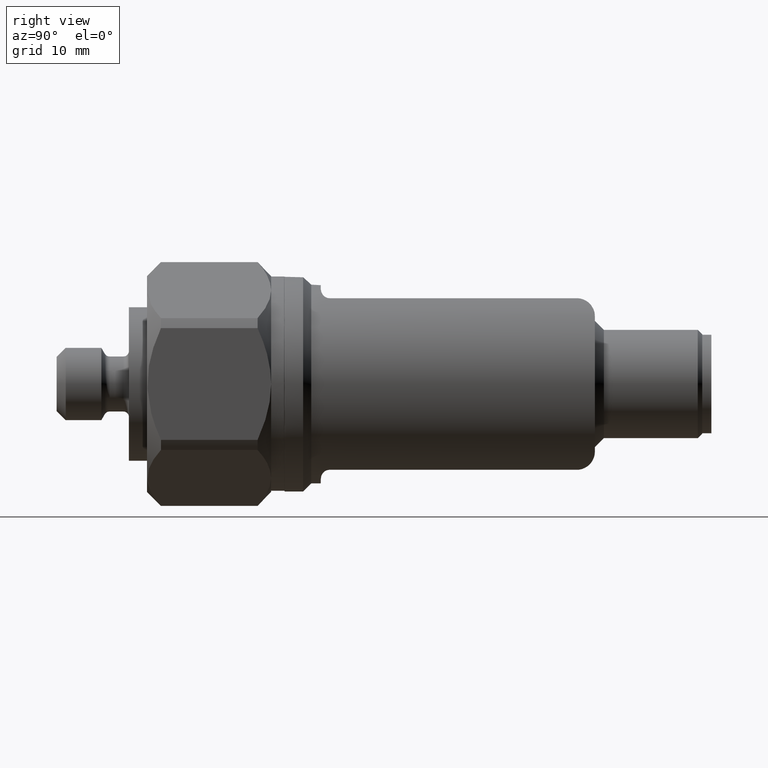
[diagram: clean part render]
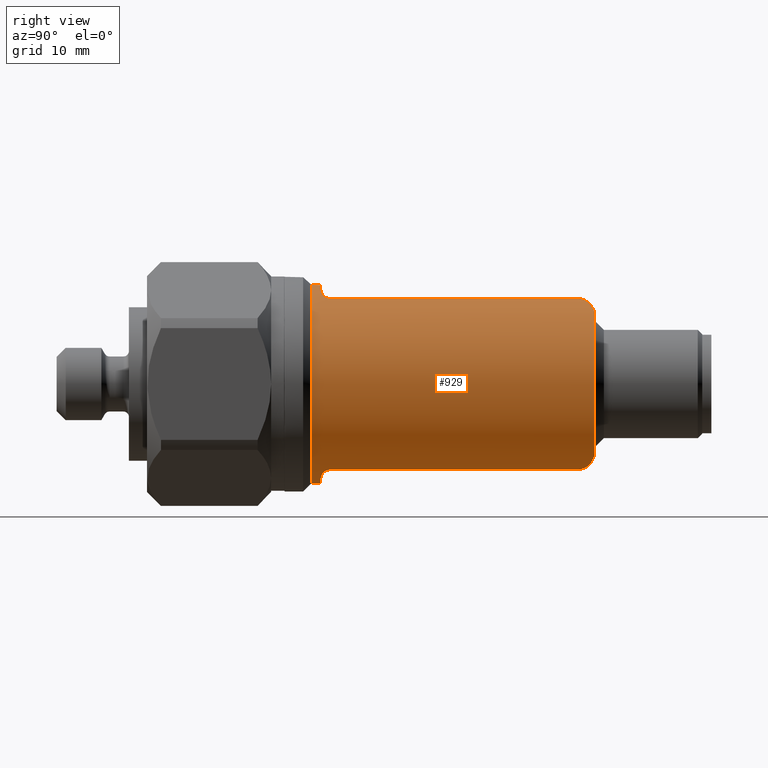
[diagram: same view with one face highlighted and labeled with its STEP entity id]
A machine part, right view. The second image highlights one B-rep face of the part: STEP entity #929.
In plain terms, the highlighted cylindrical surface (bore or boss wall) has radius 11 mm, axis along (0, -1, 0).
Its self-contained STEP definition (entity closure, byte-faithful):
#35 = CARTESIAN_POINT ( 'NONE',  ( -6.302487833183358923, 34.55688866101771595, 9.015783498059160905 ) ) ;
#66 = CARTESIAN_POINT ( 'NONE',  ( 5.475826874967431479, 5.618596032352091818, 9.540200991412580933 ) ) ;
#76 = CIRCLE ( 'NONE', #4707, 11.00000000000000000 ) ;
#98 = CARTESIAN_POINT ( 'NONE',  ( -5.314432909240796477, 5.402511657828561908, 9.631129694525723650 ) ) ;
#143 = CARTESIAN_POINT ( 'NONE',  ( 5.247260732643459491, 5.345448994863527759, 9.667797009793027030 ) ) ;
#155 = CARTESIAN_POINT ( 'NONE',  ( 6.802377522084873007, 34.89144532325906312, -8.644256496299512094 ) ) ;
#157 = CARTESIAN_POINT ( 'NONE',  ( -6.523632049984361636, 34.71951173909048549, 8.856784890457376491 ) ) ;
#187 = CARTESIAN_POINT ( 'NONE',  ( 5.146008744894731812, 5.267375710126724897, 9.722467436799666629 ) ) ;
#264 = ORIENTED_EDGE ( 'NONE', *, *, #6102, .T. ) ;
#272 = CARTESIAN_POINT ( 'NONE',  ( -7.204549710910217009, 35.07816532288709510, -8.312052854465482810 ) ) ;
#320 = CARTESIAN_POINT ( 'NONE',  ( 6.408133087577870590, 34.64321339749720607, -8.942528681736321872 ) ) ;
#345 = ORIENTED_EDGE ( 'NONE', *, *, #5991, .F. ) ;
#353 = CARTESIAN_POINT ( 'NONE',  ( -6.867150983991384905, 34.92505696032355189, -8.593028443529043159 ) ) ;
#389 = CARTESIAN_POINT ( 'NONE',  ( -6.996180947914218073, 34.98957115546404850, -8.488731667773457445 ) ) ;
#401 = CARTESIAN_POINT ( 'NONE',  ( 6.618616979772252940, 34.78183170977057159, 8.786027683273815114 ) ) ;
#407 = DIRECTION ( 'NONE',  ( 0.000000000000000000, 1.000000000000000000, 0.000000000000000000 ) ) ;
#413 = CARTESIAN_POINT ( 'NONE',  ( 4.754854618373030029, 5.085475100241541035, -9.919225570938895231 ) ) ;
#426 = CARTESIAN_POINT ( 'NONE',  ( -5.873326454570344524, 34.12023699102966390, -9.300752799879658639 ) ) ;
#453 = CARTESIAN_POINT ( 'NONE',  ( 3.278719262151019720, 4.899999999999997691, -10.50000000000000000 ) ) ;
#490 = ORIENTED_EDGE ( 'NONE', *, *, #4639, .T. ) ;
#555 = CARTESIAN_POINT ( 'NONE',  ( -4.605751629859228480, 5.041003245927096366, 9.989350169860395923 ) ) ;
#567 = CARTESIAN_POINT ( 'NONE',  ( 5.661767560664409338, 33.84992966044360685, 9.434792713933305208 ) ) ;
#571 = CARTESIAN_POINT ( 'NONE',  ( -4.604217410364574548, 5.040286137082784279, -9.989207112305447112 ) ) ;
#606 = CARTESIAN_POINT ( 'NONE',  ( 5.545268253204729270, 5.899999999999998579, -9.500000000000000000 ) ) ;
#623 = DIRECTION ( 'NONE',  ( 0.000000000000000000, 1.000000000000000000, 0.000000000000000000 ) ) ;
#642 = CARTESIAN_POINT ( 'NONE',  ( -4.619541968023129108, 5.044774325265755976, 9.982977572649179621 ) ) ;
#646 = CARTESIAN_POINT ( 'NONE',  ( 5.464993279135333282, 5.598778791794760679, 9.546405972431614373 ) ) ;
#654 = CARTESIAN_POINT ( 'NONE',  ( -5.545268253204699072, 5.723640551889345396, -9.500000000000003553 ) ) ;
#671 = DIRECTION ( 'NONE',  ( 0.000000000000000000, 0.000000000000000000, -1.000000000000000000 ) ) ;
#699 = EDGE_CURVE ( 'NONE', #5105, #2839, #1766, .T. ) ;
#741 = CARTESIAN_POINT ( 'NONE',  ( -3.278719262151019720, 4.899999999999997691, -10.50000000000000000 ) ) ;
#766 = CARTESIAN_POINT ( 'NONE',  ( 4.651668870497190689, 5.053827545320347170, 9.968053912841400077 ) ) ;
#777 = CARTESIAN_POINT ( 'NONE',  ( 7.061008154523437774, 35.01884340358900261, -8.435356151057920471 ) ) ;
#816 = CARTESIAN_POINT ( 'NONE',  ( -7.819129661469305326, 35.24999999999997158, 7.744201140448149445 ) ) ;
#840 = CARTESIAN_POINT ( 'NONE',  ( -5.513480789546839844, 5.677275040419078600, 9.518767045238595514 ) ) ;
#884 = CARTESIAN_POINT ( 'NONE',  ( 3.278719262151019720, 4.899999999999997691, -10.50000000000000000 ) ) ;
#912 = CARTESIAN_POINT ( 'NONE',  ( 8.046738469715538855, 35.25000000000000000, -7.500000000000000000 ) ) ;
#922 = CARTESIAN_POINT ( 'NONE',  ( -6.788619237157152320, 34.88292726843393154, -8.655269799557379073 ) ) ;
#929 = ADVANCED_FACE ( 'NONE', ( #5778, #2126 ), #3955, .T. ) ;
#963 = EDGE_CURVE ( 'NONE', #5653, #7460, #6458, .T. ) ;
#967 = CARTESIAN_POINT ( 'NONE',  ( -5.764840847239075750, 33.96427046620704004, -9.368468941307476427 ) ) ;
#1009 = CARTESIAN_POINT ( 'NONE',  ( -6.605970999732217130, 34.77447435663614783, -8.795522014208055239 ) ) ;
#1033 = CARTESIAN_POINT ( 'NONE',  ( 4.658112843412346216, 5.055480082592245239, -9.964432386360497773 ) ) ;
#1046 = CARTESIAN_POINT ( 'NONE',  ( -5.592259391981466266, 33.58490837700317400, -9.472474165531117762 ) ) ;
#1073 = CARTESIAN_POINT ( 'NONE',  ( 5.238451133391354375, 5.328740678339815240, -9.674809139596495910 ) ) ;
#1094 = CARTESIAN_POINT ( 'NONE',  ( -6.840555457638311410, 34.91098012964544495, -8.614190267577388482 ) ) ;
#1116 = CARTESIAN_POINT ( 'NONE',  ( -4.613059157517927389, 5.042712368158165148, -9.985159836335384398 ) ) ;
#1125 = DIRECTION ( 'NONE',  ( 0.000000000000000000, 0.000000000000000000, -1.000000000000000000 ) ) ;
#1153 = CARTESIAN_POINT ( 'NONE',  ( 5.890255682820524363, 34.14194822589570322, 9.290043342567784634 ) ) ;
#1184 = CARTESIAN_POINT ( 'NONE',  ( -3.278719262151019720, 4.899999999999997691, 10.50000000000000000 ) ) ;
#1214 = CARTESIAN_POINT ( 'NONE',  ( -5.545268253204729270, -15.43046141069414112, 9.500000000000000000 ) ) ;
#1274 = CARTESIAN_POINT ( 'NONE',  ( 4.274040772343268735, 4.948765085938910069, 10.14308769191354997 ) ) ;
#1286 = CARTESIAN_POINT ( 'NONE',  ( -4.541668721178400148, 5.023858656421260171, -10.01766344842756773 ) ) ;
#1365 = CARTESIAN_POINT ( 'NONE',  ( -5.862501175377450302, 34.10597576707489509, 9.307587991985174725 ) ) ;
#1388 = CARTESIAN_POINT ( 'NONE',  ( -5.545163836507533972, 5.786450692297643528, 9.500060949325886739 ) ) ;
#1392 = CARTESIAN_POINT ( 'NONE',  ( 5.228479776748748087, 5.330580398409842324, 9.677966191875800206 ) ) ;
#1420 = CARTESIAN_POINT ( 'NONE',  ( -5.397198952014444551, 5.495393247043951490, 9.584927625426542974 ) ) ;
#1439 = CARTESIAN_POINT ( 'NONE',  ( -6.075534431646995692, 34.35695323992684536, 9.170945783085389991 ) ) ;
#1477 = DIRECTION ( 'NONE',  ( 0.000000000000000000, 0.000000000000000000, -1.000000000000000000 ) ) ;
#1554 = CARTESIAN_POINT ( 'NONE',  ( 5.648319808518675877, 33.73987458989717680, -9.439098053903160590 ) ) ;
#1568 = CARTESIAN_POINT ( 'NONE',  ( 4.907663926092576290, 5.142865102561221313, -9.845419484944217814 ) ) ;
#1582 = CARTESIAN_POINT ( 'NONE',  ( -6.222074062963888430, 34.48809121074654627, -9.072000809341451699 ) ) ;
#1586 = VERTEX_POINT ( 'NONE', #4554 ) ;
#1592 = CARTESIAN_POINT ( 'NONE',  ( 6.561445863037659088, 34.74493248086116637, -8.828607653218336182 ) ) ;
#1629 = CARTESIAN_POINT ( 'NONE',  ( -6.054546379174505333, 34.33429990680743060, -9.185384014072031533 ) ) ;
#1637 = CARTESIAN_POINT ( 'NONE',  ( 5.645249399538231572, 33.73257624642862140, -9.440933343426676672 ) ) ;
#1652 = AXIS2_PLACEMENT_3D ( 'NONE', #8121, #2474, #3799 ) ;
#1674 = CARTESIAN_POINT ( 'NONE',  ( 5.785323360349579502, 33.99898268069924256, -9.355925342819004342 ) ) ;
#1680 = CARTESIAN_POINT ( 'NONE',  ( 6.573633404188695017, 34.75285832900438976, 8.819737943983232853 ) ) ;
#1712 = CARTESIAN_POINT ( 'NONE',  ( 5.723963577220924748, 33.89499026880875476, -9.393500999912154370 ) ) ;
#1724 = CARTESIAN_POINT ( 'NONE',  ( -5.574216174701487780, 33.55201412947972983, 9.483277501103827944 ) ) ;
#1766 = LINE ( 'NONE', #4880, #4496 ) ;
#1821 = EDGE_CURVE ( 'NONE', #7393, #3417, #2905, .T. ) ;
#1833 = CARTESIAN_POINT ( 'NONE',  ( -5.189043725904152637, 5.301170098578830370, 9.699177882813092566 ) ) ;
#1905 = CARTESIAN_POINT ( 'NONE',  ( 3.278719262151019720, 4.899999999999997691, 10.50000000000000000 ) ) ;
#1919 = CARTESIAN_POINT ( 'NONE',  ( 5.389810587919862783, 5.484481542964488199, 9.589150023122162025 ) ) ;
#1953 = CARTESIAN_POINT ( 'NONE',  ( -4.747434761238454648, 5.080294615268141634, 9.923712133631461541 ) ) ;
#1956 = CARTESIAN_POINT ( 'NONE',  ( 4.677985628808160712, 5.061533815123568480, 9.955748535901593144 ) ) ;
#1979 = VERTEX_POINT ( 'NONE', #884 ) ;
#1993 = B_SPLINE_CURVE_WITH_KNOTS ( 'NONE', 3,
 ( #1184, #3693, #8056, #2579, #4445, #3038, #3159, #7624, #6299, #555, #6210, #642, #7589, #1953, #6984, #3085, #7499, #5606, #8103, #1833, #7067, #6489, #2652, #4518, #98, #3937, #1420, #5183, #6377, #6530, #840, #1388, #5146 ),
 .UNSPECIFIED., .F., .F.,
 ( 4, 2, 2, 1, 1, 1, 1, 2, 2, 2, 2, 1, 1, 2, 2, 2, 1, 2, 2, 4 ),
 ( 0.000000000000000000, 0.2499999999999860667, 0.3749999999999791833, 0.4374999999999757971, 0.4687499999999736322, 0.4843749999999735212, 0.4921874999999729661, 0.4960937499999727995, 0.4999999999999726885, 0.6249999999999760192, 0.6874999999999779066, 0.7187499999999790168, 0.7343749999999800160, 0.7421874999999802380, 0.7499999999999804601, 0.8124999999999846789, 0.8437499999999870104, 0.8593749999999882316, 0.8749999999999893419, 1.000000000000000000 ),
 .UNSPECIFIED. ) ;
#2007 = CARTESIAN_POINT ( 'NONE',  ( 7.382031212738845660, 35.13985575148286955, -8.154974514501141414 ) ) ;
#2041 = CARTESIAN_POINT ( 'NONE',  ( 4.855548471696569557, 5.122320015318708286, 9.870534422729949853 ) ) ;
#2082 = CARTESIAN_POINT ( 'NONE',  ( 5.235568131420029303, 5.336107912468145642, 9.674134098727597220 ) ) ;
#2126 = FACE_OUTER_BOUND ( 'NONE', #3865, .T. ) ;
#2130 = CARTESIAN_POINT ( 'NONE',  ( 7.187397527077650672, 35.07435273909153750, 8.328950085735662867 ) ) ;
#2174 = CARTESIAN_POINT ( 'NONE',  ( 7.445609723163824079, 35.15936480262200803, -8.097019265344746586 ) ) ;
#2188 = CARTESIAN_POINT ( 'NONE',  ( 5.545268253204721276, 5.723664290245285891, -9.500000000000005329 ) ) ;
#2204 = CARTESIAN_POINT ( 'NONE',  ( -5.545268253204729270, 33.25000000000000000, -9.500000000000000000 ) ) ;
#2208 = ORIENTED_EDGE ( 'NONE', *, *, #963, .F. ) ;
#2214 = ORIENTED_EDGE ( 'NONE', *, *, #4107, .T. ) ;
#2215 = CARTESIAN_POINT ( 'NONE',  ( 6.571694911926114102, 34.75168246922814319, -8.820970667247967967 ) ) ;
#2242 = CARTESIAN_POINT ( 'NONE',  ( -5.625878052436120491, 33.68344406194248819, -9.452492754507174411 ) ) ;
#2252 = CARTESIAN_POINT ( 'NONE',  ( 5.956099569169460928, 34.22229351537176001, -9.248143060110427527 ) ) ;
#2287 = CARTESIAN_POINT ( 'NONE',  ( -5.961365640674102906, 34.23306798040522381, -9.244977930980637026 ) ) ;
#2298 = CARTESIAN_POINT ( 'NONE',  ( 6.110429375635759719, 34.38560018261724593, -9.147564449706809597 ) ) ;
#2313 = CARTESIAN_POINT ( 'NONE',  ( 5.545268253204729270, 5.899999999999998579, -9.500000000000000000 ) ) ;
#2328 = ORIENTED_EDGE ( 'NONE', *, *, #6338, .F. ) ;
#2330 = CARTESIAN_POINT ( 'NONE',  ( -5.669101919939983247, 33.79114191528218214, -9.426685850103329045 ) ) ;
#2338 = CARTESIAN_POINT ( 'NONE',  ( 5.890060647233135604, 34.14182260881303677, -9.290160776582602864 ) ) ;
#2391 = VERTEX_POINT ( 'NONE', #3966 ) ;
#2434 = DIRECTION ( 'NONE',  ( 0.000000000000000000, -1.000000000000000000, 0.000000000000000000 ) ) ;
#2468 = CARTESIAN_POINT ( 'NONE',  ( -5.545268253204729270, 5.899999999999998579, -9.500000000000000000 ) ) ;
#2474 = DIRECTION ( 'NONE',  ( 0.000000000000000000, -1.000000000000000000, 0.000000000000000000 ) ) ;
#2487 = ORIENTED_EDGE ( 'NONE', *, *, #699, .F. ) ;
#2541 = CARTESIAN_POINT ( 'NONE',  ( 5.537252316089018578, 5.787608622977233885, 9.504692271661246750 ) ) ;
#2579 = CARTESIAN_POINT ( 'NONE',  ( -4.138360508215266798, 4.948765085938902963, 10.19256861557420279 ) ) ;
#2587 = CIRCLE ( 'NONE', #1652, 11.00000000000000000 ) ;
#2634 = VERTEX_POINT ( 'NONE', #4958 ) ;
#2652 = CARTESIAN_POINT ( 'NONE',  ( -5.217625467783280513, 5.322264005998103009, 9.683823160691307663 ) ) ;
#2661 = AXIS2_PLACEMENT_3D ( 'NONE', #7284, #7869, #3445 ) ;
#2673 = CARTESIAN_POINT ( 'NONE',  ( 6.662207587471056236, 34.80951602718498350, -8.752787579953510644 ) ) ;
#2688 = B_SPLINE_CURVE_WITH_KNOTS ( 'NONE', 3,
 ( #3135, #4878, #4334, #3099, #3708, #6226, #6145, #1286, #8074, #571, #1116, #7556, #5619, #4964, #8116, #7512, #654, #2468 ),
 .UNSPECIFIED., .F., .F.,
 ( 4, 2, 2, 1, 1, 1, 1, 2, 2, 2, 4 ),
 ( 0.000000000000000000, 0.2500000000000097145, 0.3750000000000149325, 0.4375000000000179856, 0.4687500000000198175, 0.4843750000000208167, 0.4921875000000210387, 0.4960937500000208167, 0.5000000000000206501, 0.7500000000000103251, 1.000000000000000000 ),
 .UNSPECIFIED. ) ;
#2705 = CARTESIAN_POINT ( 'NONE',  ( 4.772342205081824495, 5.092021199031130152, 9.910887955446657571 ) ) ;
#2752 = CARTESIAN_POINT ( 'NONE',  ( 7.664684614460680834, 35.21260154215435279, -7.889733090707028218 ) ) ;
#2755 = CARTESIAN_POINT ( 'NONE',  ( 6.299668498654082072, 34.55843120564718163, 9.018455632395456334 ) ) ;
#2783 = CARTESIAN_POINT ( 'NONE',  ( -6.547524723883501707, 34.73567882148727648, -8.838947227973934062 ) ) ;
#2836 = CARTESIAN_POINT ( 'NONE',  ( 5.545268253204729270, 33.25000000000000000, -9.500000000000000000 ) ) ;
#2839 = VERTEX_POINT ( 'NONE', #7778 ) ;
#2841 = CARTESIAN_POINT ( 'NONE',  ( 5.891376300679116440, 34.14348829800992036, -9.289326662990214700 ) ) ;
#2870 = CARTESIAN_POINT ( 'NONE',  ( -7.060264177191293733, 35.01884340505651494, -8.435356148282730615 ) ) ;
#2892 = CARTESIAN_POINT ( 'NONE',  ( 0.000000000000000000, 3.849999999999999201, -11.00000000000000000 ) ) ;
#2905 = B_SPLINE_CURVE_WITH_KNOTS ( 'NONE', 3,
 ( #7628, #3819, #2541, #6420, #3902, #66, #646, #3237, #5688, #5769, #1919, #5078, #5846, #5150, #143, #2082, #1392, #187, #7658, #6953, #2041, #2705, #5231, #1956, #766, #7072, #4570, #3944, #1274, #6457, #3275 ),
 .UNSPECIFIED., .F., .F.,
 ( 4, 2, 1, 1, 2, 2, 2, 1, 1, 2, 2, 2, 2, 1, 1, 1, 2, 2, 4 ),
 ( 0.000000000000000000, 0.06249999999998749611, 0.09374999999998183398, 0.1093749999999788086, 0.1171874999999776706, 0.1249999999999765188, 0.1874999999999640565, 0.2187499999999584499, 0.2343749999999559241, 0.2421874999999548972, 0.2499999999999538702, 0.3749999999999396039, 0.4374999999999323319, 0.4687499999999289457, 0.4843749999999271694, 0.4921874999999266698, 0.4960937499999263922, 0.4999999999999261702, 1.000000000000000000 ),
 .UNSPECIFIED. ) ;
#2915 = CARTESIAN_POINT ( 'NONE',  ( 5.695727795866395660, 33.84305812755619769, -9.410640505083886609 ) ) ;
#2934 = CARTESIAN_POINT ( 'NONE',  ( 4.806989558653813610, 5.104069424579197545, -9.894255214621793471 ) ) ;
#2954 = CARTESIAN_POINT ( 'NONE',  ( -5.884355650122221171, 34.13452260515968106, -9.293775589391279013 ) ) ;
#2955 = ORIENTED_EDGE ( 'NONE', *, *, #3904, .T. ) ;
#2972 = AXIS2_PLACEMENT_3D ( 'NONE', #3730, #3812, #671 ) ;
#3038 = CARTESIAN_POINT ( 'NONE',  ( -4.393724089194158466, 4.991434536135446187, 10.08454927846875471 ) ) ;
#3085 = CARTESIAN_POINT ( 'NONE',  ( -5.007654223299299545, 5.190816699911527721, 9.794208126157732508 ) ) ;
#3099 = CARTESIAN_POINT ( 'NONE',  ( -4.118817503564306648, 4.945029918894930709, -10.19981522407057994 ) ) ;
#3132 = CARTESIAN_POINT ( 'NONE',  ( 6.131600913163702593, 34.40735105216048595, 9.132801406923015008 ) ) ;
#3135 = CARTESIAN_POINT ( 'NONE',  ( -3.278719262151019720, 4.899999999999997691, -10.50000000000000000 ) ) ;
#3136 = ORIENTED_EDGE ( 'NONE', *, *, #3182, .T. ) ;
#3159 = CARTESIAN_POINT ( 'NONE',  ( -4.466246199407185813, 5.006292648257453237, 10.05272172181445711 ) ) ;
#3180 = ORIENTED_EDGE ( 'NONE', *, *, #4809, .F. ) ;
#3182 = EDGE_CURVE ( 'NONE', #4213, #6247, #1993, .T. ) ;
#3213 = CARTESIAN_POINT ( 'NONE',  ( -5.879736278636833013, 34.12846743566985452, 9.296704688910299552 ) ) ;
#3237 = CARTESIAN_POINT ( 'NONE',  ( 5.457519687009351195, 5.585600795226798532, 9.550680467766566650 ) ) ;
#3239 = CARTESIAN_POINT ( 'NONE',  ( -5.545268253204729270, 5.899999999999998579, 9.500000000000000000 ) ) ;
#3249 = CARTESIAN_POINT ( 'NONE',  ( -5.883983696626658322, 34.13393193349391197, 9.294016704728624845 ) ) ;
#3257 = DIRECTION ( 'NONE',  ( 0.000000000000000000, 1.000000000000000000, 0.000000000000000000 ) ) ;
#3275 = CARTESIAN_POINT ( 'NONE',  ( 3.278719262151019720, 4.899999999999997691, 10.50000000000000000 ) ) ;
#3286 = CARTESIAN_POINT ( 'NONE',  ( 6.997788290140893430, 34.99011601217547707, -8.487837452883495004 ) ) ;
#3303 = ORIENTED_EDGE ( 'NONE', *, *, #3423, .T. ) ;
#3331 = CARTESIAN_POINT ( 'NONE',  ( -8.046738469715538855, 35.25000000000000000, 7.500000000000000000 ) ) ;
#3369 = CARTESIAN_POINT ( 'NONE',  ( 8.046738469715538855, 35.25000000000000000, -7.500000000000000000 ) ) ;
#3373 = CARTESIAN_POINT ( 'NONE',  ( 6.423171204504035003, 34.65311958671555459, 8.931439850473488207 ) ) ;
#3409 = CARTESIAN_POINT ( 'NONE',  ( 7.575986894145774642, 35.20609706136343675, 7.982781066232713663 ) ) ;
#3417 = VERTEX_POINT ( 'NONE', #1905 ) ;
#3421 = CARTESIAN_POINT ( 'NONE',  ( 4.690884447396314272, 5.065233234228010417, -9.949226839074482243 ) ) ;
#3423 = EDGE_CURVE ( 'NONE', #6247, #1586, #6901, .T. ) ;
#3433 = CARTESIAN_POINT ( 'NONE',  ( -7.300810842968695091, 35.11292392287452202, -8.227717143291114255 ) ) ;
#3444 = CARTESIAN_POINT ( 'NONE',  ( 5.545268253204710618, 33.40653098777721652, -9.500000000000003553 ) ) ;
#3445 = DIRECTION ( 'NONE',  ( 0.000000000000000000, 0.000000000000000000, 1.000000000000000000 ) ) ;
#3457 = CARTESIAN_POINT ( 'NONE',  ( 4.643899330598726394, 5.051379477961886799, -9.970991630866985034 ) ) ;
#3477 = CARTESIAN_POINT ( 'NONE',  ( -6.282542720233486477, 34.53964833766379883, -9.030212771044563880 ) ) ;
#3487 = DIRECTION ( 'NONE',  ( 0.000000000000000000, 0.000000000000000000, -1.000000000000000000 ) ) ;
#3516 = CARTESIAN_POINT ( 'NONE',  ( -6.755668199803023910, 34.86436133764797063, -8.680996990322444873 ) ) ;
#3533 = CARTESIAN_POINT ( 'NONE',  ( 7.058913420402262773, 35.02102107982502588, 8.437916399090294561 ) ) ;
#3555 = CARTESIAN_POINT ( 'NONE',  ( -5.863438193090839690, 34.10727404854190326, -9.306998042476394062 ) ) ;
#3566 = DIRECTION ( 'NONE',  ( 0.000000000000000000, -1.000000000000000000, 0.000000000000000000 ) ) ;
#3575 = CIRCLE ( 'NONE', #5566, 11.00000000000000000 ) ;
#3584 = CARTESIAN_POINT ( 'NONE',  ( 5.142570783449681215, 5.260828675704857460, -9.726375331848299055 ) ) ;
#3639 = DIRECTION ( 'NONE',  ( 0.000000000000000000, 1.000000000000000000, 0.000000000000000000 ) ) ;
#3661 = CARTESIAN_POINT ( 'NONE',  ( 5.897831439276771448, 34.15152412392170334, 9.285235331961624539 ) ) ;
#3673 = CARTESIAN_POINT ( 'NONE',  ( 5.545268253204729270, -15.43046141069414112, -9.500000000000000000 ) ) ;
#3693 = CARTESIAN_POINT ( 'NONE',  ( -3.553516408689094241, 4.900000000000008349, 10.41419212404394301 ) ) ;
#3708 = CARTESIAN_POINT ( 'NONE',  ( -4.226419420951112116, 4.960038460328797250, -10.15535777385295724 ) ) ;
#3714 = CARTESIAN_POINT ( 'NONE',  ( -5.545268253204729270, 33.25000000000000000, 9.500000000000000000 ) ) ;
#3730 = CARTESIAN_POINT ( 'NONE',  ( 0.000000000000000000, 35.25000000000000000, 0.000000000000000000 ) ) ;
#3799 = DIRECTION ( 'NONE',  ( 0.000000000000000000, 0.000000000000000000, -1.000000000000000000 ) ) ;
#3812 = DIRECTION ( 'NONE',  ( 0.000000000000000000, -1.000000000000000000, 0.000000000000000000 ) ) ;
#3819 = CARTESIAN_POINT ( 'NONE',  ( 5.545216107987779530, 5.843268357297926485, 9.500030437812212014 ) ) ;
#3825 = EDGE_CURVE ( 'NONE', #5995, #5995, #2587, .T. ) ;
#3831 = EDGE_CURVE ( 'NONE', #5653, #4008, #76, .T. ) ;
#3859 = EDGE_CURVE ( 'NONE', #7612, #7460, #5666, .T. ) ;
#3865 = EDGE_LOOP ( 'NONE', ( #4955 ) ) ;
#3870 = CARTESIAN_POINT ( 'NONE',  ( 7.335650472176473258, 35.12473561694081070, -8.196739368881090115 ) ) ;
#3902 = CARTESIAN_POINT ( 'NONE',  ( 5.498472759359374962, 5.665187980256829015, 9.527178959002332803 ) ) ;
#3904 = EDGE_CURVE ( 'NONE', #1586, #2391, #7058, .T. ) ;
#3937 = CARTESIAN_POINT ( 'NONE',  ( -5.370895161587206701, 5.463914300027214566, 9.599684851501029570 ) ) ;
#3944 = CARTESIAN_POINT ( 'NONE',  ( 4.627776066258598497, 5.047057212284504324, 9.979163182082190886 ) ) ;
#3955 = CYLINDRICAL_SURFACE ( 'NONE', #5186, 11.00000000000000000 ) ;
#3958 = CARTESIAN_POINT ( 'NONE',  ( -6.442122750262956998, 34.66286295628714242, 8.916379981427599688 ) ) ;
#3966 = CARTESIAN_POINT ( 'NONE',  ( -8.046738469715538855, 35.25000000000000000, 7.500000000000000000 ) ) ;
#3967 = LINE ( 'NONE', #4597, #4248 ) ;
#4008 = VERTEX_POINT ( 'NONE', #7207 ) ;
#4043 = CARTESIAN_POINT ( 'NONE',  ( 8.046738469715538855, 35.25000000000000000, 7.500000000000000000 ) ) ;
#4107 = EDGE_CURVE ( 'NONE', #4008, #2634, #4810, .T. ) ;
#4108 = CARTESIAN_POINT ( 'NONE',  ( -6.430740701107032997, 34.65446880675285257, -8.924680239377861923 ) ) ;
#4119 = CARTESIAN_POINT ( 'NONE',  ( 6.059209540779247227, 34.33462702193359206, -9.181370783392505786 ) ) ;
#4153 = CARTESIAN_POINT ( 'NONE',  ( -6.524526222418519872, 34.72019748733227829, -8.855974524138956028 ) ) ;
#4162 = CARTESIAN_POINT ( 'NONE',  ( 5.545268253204729270, 33.25000000000000000, -9.500000000000000000 ) ) ;
#4165 = CARTESIAN_POINT ( 'NONE',  ( 7.819157569791426177, 35.24999999999997158, 7.744171197652246263 ) ) ;
#4191 = CARTESIAN_POINT ( 'NONE',  ( -6.492758402730651746, 34.69840918768293392, -8.879380819607048281 ) ) ;
#4213 = VERTEX_POINT ( 'NONE', #5303 ) ;
#4228 = CARTESIAN_POINT ( 'NONE',  ( -5.879969624029976139, 34.12887554926065548, -9.296552486219807676 ) ) ;
#4244 = CARTESIAN_POINT ( 'NONE',  ( 5.892267936308686060, 34.14449871378055690, 9.288766840801770286 ) ) ;
#4248 = VECTOR ( 'NONE', #3257, 1000.000000000000000 ) ;
#4253 = CARTESIAN_POINT ( 'NONE',  ( -5.660056646663030655, 33.77387803762501761, 9.432118971253338202 ) ) ;
#4334 = CARTESIAN_POINT ( 'NONE',  ( -3.782293095660896665, 4.909998879967433005, -10.33203332367187777 ) ) ;
#4445 = CARTESIAN_POINT ( 'NONE',  ( -4.244139041037202631, 4.964004175294814303, 10.14884554457612431 ) ) ;
#4496 = VECTOR ( 'NONE', #407, 1000.000000000000000 ) ;
#4518 = CARTESIAN_POINT ( 'NONE',  ( -5.271653113961881409, 5.363650232142578744, 9.654669923958316247 ) ) ;
#4538 = CARTESIAN_POINT ( 'NONE',  ( 7.324821585699843318, 35.12110027451318928, -8.206428726609104274 ) ) ;
#4554 = CARTESIAN_POINT ( 'NONE',  ( -5.545268253204729270, 33.25000000000000000, 9.500000000000000000 ) ) ;
#4570 = CARTESIAN_POINT ( 'NONE',  ( 4.632678045391240396, 5.048428698999938291, 9.976888880485597966 ) ) ;
#4597 = CARTESIAN_POINT ( 'NONE',  ( 5.545268253204729270, -15.43046141069414112, 9.500000000000000000 ) ) ;
#4639 = EDGE_CURVE ( 'NONE', #2391, #5926, #7834, .T. ) ;
#4669 = DIRECTION ( 'NONE',  ( 0.000000000000000000, -1.000000000000000000, 0.000000000000000000 ) ) ;
#4700 = CARTESIAN_POINT ( 'NONE',  ( -5.577262220031430573, 33.52563426675365577, -9.481314625422012199 ) ) ;
#4707 = AXIS2_PLACEMENT_3D ( 'NONE', #6280, #2434, #1125 ) ;
#4789 = CARTESIAN_POINT ( 'NONE',  ( 5.832747509661481367, 34.06848834607414034, -9.326474406664305050 ) ) ;
#4803 = CARTESIAN_POINT ( 'NONE',  ( 5.468563973251379551, 5.550778317568256348, -9.547554258118591264 ) ) ;
#4809 = EDGE_CURVE ( 'NONE', #7612, #1979, #7651, .T. ) ;
#4810 = B_SPLINE_CURVE_WITH_KNOTS ( 'NONE', 3,
 ( #4043, #4165, #3409, #2130, #3533, #6063, #5326, #5904, #401, #7828, #1680, #3373, #2755, #3132, #6799, #5617, #5046, #6840, #5657, #3661, #4244, #1153, #567, #6103, #6182 ),
 .UNSPECIFIED., .F., .F.,
 ( 4, 2, 2, 1, 1, 2, 2, 2, 2, 1, 1, 1, 2, 2, 4 ),
 ( 0.000000000000000000, 0.2499999999999847344, 0.3749999999999769074, 0.4374999999999723554, 0.4687499999999690248, 0.4843749999999681366, 0.4999999999999672484, 0.6249999999999669154, 0.6874999999999649170, 0.7187499999999640288, 0.7343749999999618083, 0.7421874999999610312, 0.7460937499999623634, 0.7499999999999635847, 1.000000000000000000 ),
 .UNSPECIFIED. ) ;
#4820 = CARTESIAN_POINT ( 'NONE',  ( -7.307988446917286218, 35.11539036273623537, -8.221380210326222127 ) ) ;
#4829 = VECTOR ( 'NONE', #3639, 1000.000000000000000 ) ;
#4861 = CARTESIAN_POINT ( 'NONE',  ( -5.703481064110413890, 33.86027708749462306, -9.406041922567371927 ) ) ;
#4878 = CARTESIAN_POINT ( 'NONE',  ( -3.539651949401283026, 4.900000000000001243, -10.41852142592262531 ) ) ;
#4880 = CARTESIAN_POINT ( 'NONE',  ( -5.545268253204729270, -15.43046141069414112, -9.500000000000000000 ) ) ;
#4955 = ORIENTED_EDGE ( 'NONE', *, *, #3825, .F. ) ;
#4958 = CARTESIAN_POINT ( 'NONE',  ( 5.545268253204729270, 33.25000000000000000, 9.500000000000000000 ) ) ;
#4964 = CARTESIAN_POINT ( 'NONE',  ( -4.931634013577998132, 5.131742100670965812, -9.838970086845852947 ) ) ;
#5046 = CARTESIAN_POINT ( 'NONE',  ( 5.966639506058080578, 34.23482179528835445, 9.241243196587390685 ) ) ;
#5078 = CARTESIAN_POINT ( 'NONE',  ( 5.333348646036421670, 5.423078900765851529, 9.620595423606619789 ) ) ;
#5086 = VERTEX_POINT ( 'NONE', #741 ) ;
#5105 = VERTEX_POINT ( 'NONE', #7087 ) ;
#5146 = CARTESIAN_POINT ( 'NONE',  ( -5.545268253204729270, 5.899999999999998579, 9.500000000000000000 ) ) ;
#5150 = CARTESIAN_POINT ( 'NONE',  ( 5.264552868211823444, 5.359556263953495936, 9.658404538051266641 ) ) ;
#5162 = CARTESIAN_POINT ( 'NONE',  ( 7.847154446417667017, 35.24267631650472765, -7.709828212297071381 ) ) ;
#5183 = CARTESIAN_POINT ( 'NONE',  ( -5.420637105484050089, 5.528038632936821628, 9.571664831105103133 ) ) ;
#5186 = AXIS2_PLACEMENT_3D ( 'NONE', #6468, #4669, #1477 ) ;
#5204 = CARTESIAN_POINT ( 'NONE',  ( 6.609165039338319225, 34.77603010302769349, -8.792911374096030741 ) ) ;
#5231 = CARTESIAN_POINT ( 'NONE',  ( 4.729667297451014107, 5.077468301628786485, 9.931368625284450857 ) ) ;
#5236 = EDGE_CURVE ( 'NONE', #5086, #5105, #2688, .T. ) ;
#5247 = CARTESIAN_POINT ( 'NONE',  ( -6.541535375194946766, 34.73158036727128462, 8.843567258194349634 ) ) ;
#5268 = EDGE_LOOP ( 'NONE', ( #5392, #345, #3136, #3303, #2955, #490, #2328, #2487, #6549, #264, #3180, #6016, #2208, #7381, #2214, #5898 ) ) ;
#5283 = CARTESIAN_POINT ( 'NONE',  ( 7.498056725837151326, 35.17368272160684484, -8.048221330912562976 ) ) ;
#5303 = CARTESIAN_POINT ( 'NONE',  ( -3.278719262151019720, 4.899999999999997691, 10.50000000000000000 ) ) ;
#5308 = CARTESIAN_POINT ( 'NONE',  ( -5.615005102772339995, 33.65391989475136114, -9.458968685809576726 ) ) ;
#5326 = CARTESIAN_POINT ( 'NONE',  ( 6.774105626694066018, 34.87630552288871399, 8.667318430403318175 ) ) ;
#5392 = ORIENTED_EDGE ( 'NONE', *, *, #1821, .T. ) ;
#5396 = CARTESIAN_POINT ( 'NONE',  ( -7.284764298832747897, 35.10733842673672456, -8.241856961701580886 ) ) ;
#5433 = CARTESIAN_POINT ( 'NONE',  ( -7.156445174161481404, 35.05901399896473691, -8.353459360769541320 ) ) ;
#5460 = CARTESIAN_POINT ( 'NONE',  ( 4.249412887819128848, 4.941017719434405819, -10.15206917693505773 ) ) ;
#5479 = CARTESIAN_POINT ( 'NONE',  ( -6.538303638472478418, 34.72949229957100670, -8.845779987748750628 ) ) ;
#5488 = CARTESIAN_POINT ( 'NONE',  ( 6.582897839078752256, 34.75902516972020351, -8.812607885722178125 ) ) ;
#5539 = CARTESIAN_POINT ( 'NONE',  ( -5.759657904516375382, 33.95669943265072988, 9.371604154928343533 ) ) ;
#5566 = AXIS2_PLACEMENT_3D ( 'NONE', #7206, #3566, #3487 ) ;
#5606 = CARTESIAN_POINT ( 'NONE',  ( -5.121094353965192525, 5.255649126363768353, 9.735246117180084369 ) ) ;
#5617 = CARTESIAN_POINT ( 'NONE',  ( 6.003160827210296979, 34.27541920299879052, 9.217535459919083962 ) ) ;
#5619 = CARTESIAN_POINT ( 'NONE',  ( -4.620022876267566581, 5.044633785418537464, -9.981969812774497797 ) ) ;
#5653 = VERTEX_POINT ( 'NONE', #912 ) ;
#5657 = CARTESIAN_POINT ( 'NONE',  ( 5.906212718299099329, 34.16204456807501799, 9.279909941236576643 ) ) ;
#5666 = LINE ( 'NONE', #3673, #7847 ) ;
#5688 = CARTESIAN_POINT ( 'NONE',  ( 5.453092411498882797, 5.578100040530889814, 9.553208816055564156 ) ) ;
#5699 = CARTESIAN_POINT ( 'NONE',  ( -7.057921574629864025, 35.03044585530361132, 8.444291799396605569 ) ) ;
#5769 = CARTESIAN_POINT ( 'NONE',  ( 5.422282201104059673, 5.527457075030760336, 9.570781041698024794 ) ) ;
#5778 = FACE_OUTER_BOUND ( 'NONE', #5268, .T. ) ;
#5817 = CARTESIAN_POINT ( 'NONE',  ( 6.866482017872726829, 34.92574135594291107, -8.593488672612313195 ) ) ;
#5820 = CARTESIAN_POINT ( 'NONE',  ( -7.575933057570820139, 35.20608917106069669, 7.982829025739440532 ) ) ;
#5846 = CARTESIAN_POINT ( 'NONE',  ( 5.303178482129806248, 5.393142743641721637, 9.637289953040138357 ) ) ;
#5898 = ORIENTED_EDGE ( 'NONE', *, *, #6853, .F. ) ;
#5902 = CARTESIAN_POINT ( 'NONE',  ( 7.954231305729619450, 35.25000000000000000, -7.599250794022632149 ) ) ;
#5904 = CARTESIAN_POINT ( 'NONE',  ( 6.665064713558762399, 34.81110082834048569, 8.750974871403112587 ) ) ;
#5926 = VERTEX_POINT ( 'NONE', #6512 ) ;
#5929 = CARTESIAN_POINT ( 'NONE',  ( -5.637768682903013584, 33.71421140396631699, -9.445401028599372140 ) ) ;
#5950 = CARTESIAN_POINT ( 'NONE',  ( 4.627749737561078547, 5.046793883610415143, -9.978423728241432755 ) ) ;
#5968 = CARTESIAN_POINT ( 'NONE',  ( -7.844014490213687019, 35.25000000000000711, -7.717502245945549788 ) ) ;
#5978 = CARTESIAN_POINT ( 'NONE',  ( 5.920383206283037936, 34.17962132967970490, -9.270912035602115964 ) ) ;
#5991 = EDGE_CURVE ( 'NONE', #4213, #3417, #6351, .T. ) ;
#5995 = VERTEX_POINT ( 'NONE', #2892 ) ;
#6012 = CARTESIAN_POINT ( 'NONE',  ( -6.380184850147568199, 34.61630982186842687, -8.960952928927769179 ) ) ;
#6016 = ORIENTED_EDGE ( 'NONE', *, *, #3859, .T. ) ;
#6021 = CARTESIAN_POINT ( 'NONE',  ( 6.564238392577057546, 34.74677528198355958, -8.826528362817647633 ) ) ;
#6026 = B_SPLINE_CURVE_WITH_KNOTS ( 'NONE', 3,
 ( #2204, #7271, #6575, #4700, #1046, #5308, #2242, #7354, #5929, #2330, #4861, #967, #7932, #6087, #3555, #426, #4228, #2954, #2287, #1629, #1582, #3477, #6012, #4108, #4191, #4153, #5479, #2783, #7894, #1009, #6662, #3516, #922, #1094, #353, #6048, #7195, #7979, #389, #2870, #5433, #272, #6616, #5396, #3433, #4820, #7817, #5968, #7317 ),
 .UNSPECIFIED., .F., .F.,
 ( 4, 2, 1, 1, 2, 2, 2, 1, 1, 1, 2, 2, 2, 2, 1, 1, 1, 2, 2, 2, 2, 1, 2, 2, 2, 1, 1, 2, 2, 4 ),
 ( 0.000000000000000000, 0.06249999999997360445, 0.09374999999996035116, 0.1093749999999536204, 0.1171874999999527184, 0.1249999999999518163, 0.1874999999999619749, 0.2187499999999666933, 0.2343749999999671929, 0.2421874999999676370, 0.2460937499999679978, 0.2499999999999684142, 0.3749999999999424349, 0.4374999999999279465, 0.4687499999999220068, 0.4843749999999192868, 0.4921874999999189537, 0.4960937499999185651, 0.4999999999999180655, 0.5624999999999303890, 0.5937499999999372724, 0.6093749999999403810, 0.6171874999999419353, 0.6249999999999434896, 0.6874999999999485967, 0.7187499999999517053, 0.7343749999999531486, 0.7421874999999535927, 0.7499999999999539257, 1.000000000000000000 ),
 .UNSPECIFIED. ) ;
#6048 = CARTESIAN_POINT ( 'NONE',  ( -6.894687634513195995, 34.93915093067595734, -8.570909496320975762 ) ) ;
#6063 = CARTESIAN_POINT ( 'NONE',  ( 6.868634749748786739, 34.92689826316144774, 8.592352974199583215 ) ) ;
#6087 = CARTESIAN_POINT ( 'NONE',  ( -5.840901031941622357, 34.07699507787137350, -9.321185209904360391 ) ) ;
#6102 = EDGE_CURVE ( 'NONE', #5086, #1979, #3575, .T. ) ;
#6103 = CARTESIAN_POINT ( 'NONE',  ( 5.545405285429186648, 33.55411111624989218, 9.499920012584837536 ) ) ;
#6118 = CARTESIAN_POINT ( 'NONE',  ( 3.800713677281260416, 4.900000000000000355, -10.33700255775018206 ) ) ;
#6145 = CARTESIAN_POINT ( 'NONE',  ( -4.456519911296288328, 5.003428482581795400, -10.05590067009434208 ) ) ;
#6182 = CARTESIAN_POINT ( 'NONE',  ( 5.545268253204729270, 33.25000000000000000, 9.500000000000000000 ) ) ;
#6210 = CARTESIAN_POINT ( 'NONE',  ( -4.614032740229456309, 5.043262321868724030, 9.985525077953296247 ) ) ;
#6226 = CARTESIAN_POINT ( 'NONE',  ( -4.380962969159813980, 4.988049930980905877, -10.08899688365873182 ) ) ;
#6247 = VERTEX_POINT ( 'NONE', #3239 ) ;
#6280 = CARTESIAN_POINT ( 'NONE',  ( 0.000000000000000000, 35.25000000000000000, 0.000000000000000000 ) ) ;
#6299 = CARTESIAN_POINT ( 'NONE',  ( -4.586308051965040988, 5.035794572807399838, 9.998301939531108573 ) ) ;
#6320 = CARTESIAN_POINT ( 'NONE',  ( -5.545337079910702016, 33.40203966228753529, 9.499959824994981261 ) ) ;
#6338 = EDGE_CURVE ( 'NONE', #2839, #5926, #6026, .T. ) ;
#6351 = CIRCLE ( 'NONE', #2661, 11.00000000000000000 ) ;
#6377 = CARTESIAN_POINT ( 'NONE',  ( -5.435628213252684304, 5.550061432171210285, 9.563159529970016948 ) ) ;
#6391 = CARTESIAN_POINT ( 'NONE',  ( 7.189249483817027553, 35.07240419563797218, -8.326160434457698045 ) ) ;
#6420 = CARTESIAN_POINT ( 'NONE',  ( 5.513386970027825740, 5.705726884068283766, 9.518542363013359875 ) ) ;
#6430 = CARTESIAN_POINT ( 'NONE',  ( 7.253159591389477079, 35.09669267669283244, -8.270340362312181171 ) ) ;
#6457 = CARTESIAN_POINT ( 'NONE',  ( 3.828444507713027800, 4.900000000000008349, 10.32834335699857320 ) ) ;
#6458 = B_SPLINE_CURVE_WITH_KNOTS ( 'NONE', 3,
 ( #3369, #5902, #5162, #2752, #7204, #5283, #2174, #2007, #7784, #3870, #4538, #6430, #6391, #777, #3286, #5817, #155, #7713, #2673, #5204, #5488, #2215, #6021, #1592, #320, #7943, #2298, #4119, #6584, #2252, #5978, #7902, #7867, #2841, #2338, #4789, #1674, #1712, #2915, #7988, #7283, #1554, #1637, #7325, #3444, #4162 ),
 .UNSPECIFIED., .F., .F.,
 ( 4, 2, 2, 1, 1, 2, 2, 2, 2, 2, 1, 1, 1, 2, 2, 2, 2, 1, 1, 1, 2, 2, 2, 1, 1, 2, 2, 4 ),
 ( 0.000000000000000000, 0.1250000000000100753, 0.1875000000000155709, 0.2187500000000174860, 0.2343750000000182909, 0.2421875000000191513, 0.2500000000000200395, 0.3125000000000205391, 0.3750000000000209832, 0.4375000000000214828, 0.4687500000000219824, 0.4843750000000219824, 0.4921875000000220379, 0.4960937500000228706, 0.5000000000000237588, 0.6250000000000335287, 0.6875000000000394129, 0.7187500000000422995, 0.7343750000000415223, 0.7421875000000389688, 0.7460937500000403011, 0.7500000000000415223, 0.8125000000000375255, 0.8437500000000357492, 0.8593750000000350830, 0.8671875000000348610, 0.8750000000000345279, 1.000000000000000000 ),
 .UNSPECIFIED. ) ;
#6468 = CARTESIAN_POINT ( 'NONE',  ( 0.000000000000000000, -15.43046141069414112, 0.000000000000000000 ) ) ;
#6470 = CARTESIAN_POINT ( 'NONE',  ( -6.490833399373280521, 34.69696508473601426, 8.880849931228294025 ) ) ;
#6489 = CARTESIAN_POINT ( 'NONE',  ( -5.213873464988785678, 5.319447019990938941, 9.685843017379674791 ) ) ;
#6512 = CARTESIAN_POINT ( 'NONE',  ( -8.046738469715538855, 35.25000000000000000, -7.500000000000000000 ) ) ;
#6530 = CARTESIAN_POINT ( 'NONE',  ( -5.441692587943570913, 5.559372794857464939, 9.559710565612970612 ) ) ;
#6549 = ORIENTED_EDGE ( 'NONE', *, *, #5236, .F. ) ;
#6575 = CARTESIAN_POINT ( 'NONE',  ( -5.553266744911382169, 33.40714977687154885, -9.495402596798266259 ) ) ;
#6584 = CARTESIAN_POINT ( 'NONE',  ( 5.989313878104403521, 34.25951537045270356, -9.226769987232930958 ) ) ;
#6616 = CARTESIAN_POINT ( 'NONE',  ( -7.260696237411782050, 35.09883926423717071, -8.263018924377941943 ) ) ;
#6662 = CARTESIAN_POINT ( 'NONE',  ( -6.661834416640584067, 34.80963683885909177, -8.753474614599879189 ) ) ;
#6764 = CARTESIAN_POINT ( 'NONE',  ( -5.695742782494183309, 33.84731637489959866, 9.410685873547048885 ) ) ;
#6799 = CARTESIAN_POINT ( 'NONE',  ( 6.078437176803228148, 34.35548307068420115, 9.168216891878605779 ) ) ;
#6840 = CARTESIAN_POINT ( 'NONE',  ( 5.926020721643770806, 34.18646857369088821, 9.267286424710952986 ) ) ;
#6853 = EDGE_CURVE ( 'NONE', #7393, #2634, #3967, .T. ) ;
#6901 = LINE ( 'NONE', #1214, #4829 ) ;
#6932 = CARTESIAN_POINT ( 'NONE',  ( 5.545268253204729270, 5.899999999999998579, 9.500000000000000000 ) ) ;
#6953 = CARTESIAN_POINT ( 'NONE',  ( 4.908161391040533950, 5.144109921487606485, 9.844443376754247410 ) ) ;
#6968 = CARTESIAN_POINT ( 'NONE',  ( -6.394897768235395574, 34.62791438708683955, 8.950235124098307793 ) ) ;
#6984 = CARTESIAN_POINT ( 'NONE',  ( -4.858221482402916180, 5.120674895473277921, 9.869657470368707664 ) ) ;
#7002 = CARTESIAN_POINT ( 'NONE',  ( -6.243602565154181328, 34.50803339341355525, 9.056600814047463643 ) ) ;
#7043 = CARTESIAN_POINT ( 'NONE',  ( -6.802995490906388554, 34.90491031463292160, 8.649461406642677375 ) ) ;
#7058 = B_SPLINE_CURVE_WITH_KNOTS ( 'NONE', 3,
 ( #3714, #6320, #1724, #4253, #6764, #5539, #8036, #7433, #1365, #7083, #3213, #3249, #7607, #1439, #7002, #35, #6968, #3958, #6470, #157, #5247, #7043, #5699, #5820, #816, #3331 ),
 .UNSPECIFIED., .F., .F.,
 ( 4, 2, 2, 1, 1, 1, 2, 2, 2, 2, 1, 2, 2, 2, 4 ),
 ( 0.000000000000000000, 0.1249999999999674705, 0.1874999999999487355, 0.2187499999999390488, 0.2343749999999321931, 0.2421874999999301115, 0.2460937499999293065, 0.2499999999999284739, 0.3749999999999504841, 0.4374999999999615863, 0.4687499999999660272, 0.4843749999999677480, 0.4999999999999694689, 0.7499999999999846789, 1.000000000000000000 ),
 .UNSPECIFIED. ) ;
#7067 = CARTESIAN_POINT ( 'NONE',  ( -5.203992116257680323, 5.312106340850683672, 9.691155633884156018 ) ) ;
#7072 = CARTESIAN_POINT ( 'NONE',  ( 4.640288023750819058, 5.050580781143833242, 9.973351726598325584 ) ) ;
#7083 = CARTESIAN_POINT ( 'NONE',  ( -5.872810745521965359, 34.11947318838238630, 9.301081159005473609 ) ) ;
#7087 = CARTESIAN_POINT ( 'NONE',  ( -5.545268253204729270, 5.899999999999998579, -9.500000000000000000 ) ) ;
#7195 = CARTESIAN_POINT ( 'NONE',  ( -6.913254540231900336, 34.94854383851356516, -8.555948315288949502 ) ) ;
#7204 = CARTESIAN_POINT ( 'NONE',  ( 7.600218913310174962, 35.19938242923198146, -7.952012730912045413 ) ) ;
#7206 = CARTESIAN_POINT ( 'NONE',  ( 0.000000000000000000, 4.899999999999997691, 0.000000000000000000 ) ) ;
#7207 = CARTESIAN_POINT ( 'NONE',  ( 8.046738469715538855, 35.25000000000000000, 7.500000000000000000 ) ) ;
#7271 = CARTESIAN_POINT ( 'NONE',  ( -5.545268253204699072, 33.32824831060252535, -9.500000000000000000 ) ) ;
#7283 = CARTESIAN_POINT ( 'NONE',  ( 5.655694977128685075, 33.75702198682311916, -9.434685266743899845 ) ) ;
#7284 = CARTESIAN_POINT ( 'NONE',  ( 0.000000000000000000, 4.899999999999997691, 0.000000000000000000 ) ) ;
#7301 = CARTESIAN_POINT ( 'NONE',  ( 4.634386202127950050, 5.048663421939192375, -9.975373775061964210 ) ) ;
#7317 = CARTESIAN_POINT ( 'NONE',  ( -8.046738469715538855, 35.25000000000000000, -7.500000000000000000 ) ) ;
#7325 = CARTESIAN_POINT ( 'NONE',  ( 5.577262220031435902, 33.56568711261062532, -9.481533098647709323 ) ) ;
#7340 = CARTESIAN_POINT ( 'NONE',  ( 4.969986153554665442, 5.170874175976068798, -9.814336591332942561 ) ) ;
#7354 = CARTESIAN_POINT ( 'NONE',  ( -5.633376638411140114, 33.70311279646081459, -9.448022203394939922 ) ) ;
#7381 = ORIENTED_EDGE ( 'NONE', *, *, #3831, .T. ) ;
#7393 = VERTEX_POINT ( 'NONE', #6932 ) ;
#7433 = CARTESIAN_POINT ( 'NONE',  ( -5.838997873903417180, 34.07443943139035269, 9.322367387632624514 ) ) ;
#7460 = VERTEX_POINT ( 'NONE', #2836 ) ;
#7499 = CARTESIAN_POINT ( 'NONE',  ( -5.054673574601697084, 5.215792532079366772, 9.769993471408247032 ) ) ;
#7512 = CARTESIAN_POINT ( 'NONE',  ( -5.468563973251362675, 5.550744403545602168, -9.547566693645286762 ) ) ;
#7556 = CARTESIAN_POINT ( 'NONE',  ( -4.618944724203661423, 5.044337445570893586, -9.982463459474550049 ) ) ;
#7589 = CARTESIAN_POINT ( 'NONE',  ( -4.621208906289739460, 5.045232777896350385, 9.982206470375430740 ) ) ;
#7607 = CARTESIAN_POINT ( 'NONE',  ( -5.974957579006209052, 34.25021400337009680, 9.236383895806838495 ) ) ;
#7612 = VERTEX_POINT ( 'NONE', #606 ) ;
#7624 = CARTESIAN_POINT ( 'NONE',  ( -4.546936097857079417, 5.025627242877765077, 10.01630942412822733 ) ) ;
#7628 = CARTESIAN_POINT ( 'NONE',  ( 5.545268253204729270, 5.899999999999998579, 9.500000000000000000 ) ) ;
#7651 = B_SPLINE_CURVE_WITH_KNOTS ( 'NONE', 3,
 ( #2313, #2188, #4803, #1073, #3584, #7340, #1568, #2934, #413, #3421, #1033, #3457, #7301, #5950, #5460, #6118, #453 ),
 .UNSPECIFIED., .F., .F.,
 ( 4, 2, 2, 2, 1, 1, 1, 2, 2, 4 ),
 ( 0.000000000000000000, 0.2499999999999832911, 0.3749999999999749090, 0.4374999999999710232, 0.4687499999999693023, 0.4843749999999681366, 0.4921874999999671929, 0.4960937499999671374, 0.4999999999999670264, 1.000000000000000000 ),
 .UNSPECIFIED. ) ;
#7658 = CARTESIAN_POINT ( 'NONE',  ( 5.057593143289548010, 5.214251725925845626, 9.768992074489394994 ) ) ;
#7713 = CARTESIAN_POINT ( 'NONE',  ( 6.708543738922434940, 34.83727945641669521, -8.717152556946210495 ) ) ;
#7778 = CARTESIAN_POINT ( 'NONE',  ( -5.545268253204729270, 33.25000000000000000, -9.500000000000000000 ) ) ;
#7784 = CARTESIAN_POINT ( 'NONE',  ( 7.354271063848260681, 35.13086877815437958, -8.180008838868486620 ) ) ;
#7817 = CARTESIAN_POINT ( 'NONE',  ( -7.600721380937700111, 35.21432292603434178, -7.962323911905480500 ) ) ;
#7828 = CARTESIAN_POINT ( 'NONE',  ( 6.587716895631090530, 34.76202468639553445, 8.809220128887687906 ) ) ;
#7834 = CIRCLE ( 'NONE', #2972, 11.00000000000000000 ) ;
#7847 = VECTOR ( 'NONE', #623, 1000.000000000000000 ) ;
#7867 = CARTESIAN_POINT ( 'NONE',  ( 5.896117487733805618, 34.14948365915066830, -9.286320349906285188 ) ) ;
#7869 = DIRECTION ( 'NONE',  ( 0.000000000000000000, 1.000000000000000000, 0.000000000000000000 ) ) ;
#7894 = CARTESIAN_POINT ( 'NONE',  ( -6.553726835208654400, 34.73981106738058600, -8.834343417559487932 ) ) ;
#7902 = CARTESIAN_POINT ( 'NONE',  ( 5.903283440890911393, 34.15849248628106949, -9.281774659259761862 ) ) ;
#7932 = CARTESIAN_POINT ( 'NONE',  ( -5.797968505521660987, 34.01633732348274464, -9.348031868824332236 ) ) ;
#7943 = CARTESIAN_POINT ( 'NONE',  ( 6.277957059425147257, 34.53938897411726572, -9.034177837219981910 ) ) ;
#7979 = CARTESIAN_POINT ( 'NONE',  ( -6.924129429768430377, 34.95397337513360014, -8.547154487119668076 ) ) ;
#7988 = CARTESIAN_POINT ( 'NONE',  ( 5.667063243819925766, 33.78277411546044107, -9.427876008674511255 ) ) ;
#8036 = CARTESIAN_POINT ( 'NONE',  ( -5.794210461570834525, 34.01119734948607487, 9.350328074007940415 ) ) ;
#8056 = CARTESIAN_POINT ( 'NONE',  ( -3.802383510850502635, 4.912191271484732447, 10.32471841519121547 ) ) ;
#8074 = CARTESIAN_POINT ( 'NONE',  ( -4.583492887133502336, 5.034704513516667923, -9.998669234418265717 ) ) ;
#8103 = CARTESIAN_POINT ( 'NONE',  ( -5.153277611595302510, 5.276175635014127785, 9.718265769407814503 ) ) ;
#8116 = CARTESIAN_POINT ( 'NONE',  ( -5.161746853438009097, 5.254700259738708468, -9.717250410458619925 ) ) ;
#8121 = CARTESIAN_POINT ( 'NONE',  ( 0.000000000000000000, 3.849999999999999201, 0.000000000000000000 ) ) ;